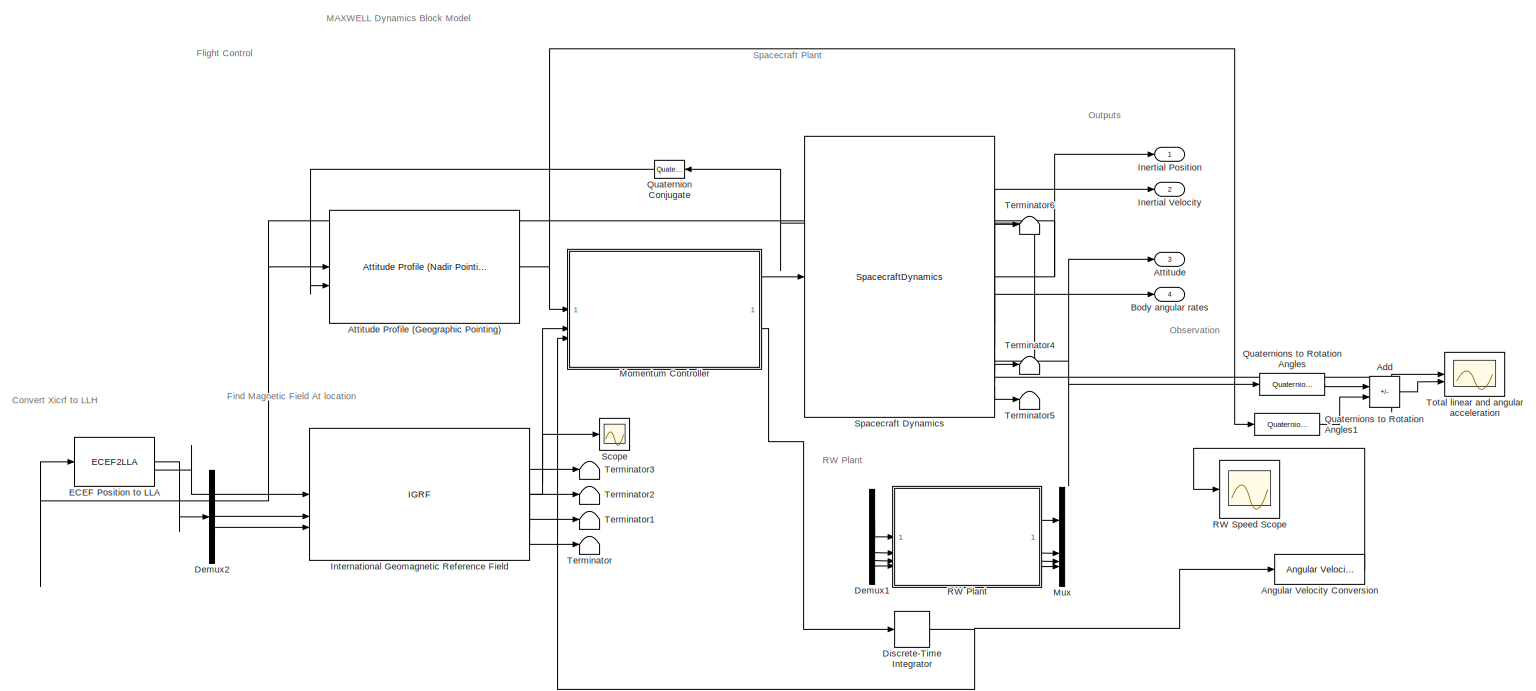
[diagram: root canvas - part 1/2, full width, middle band]
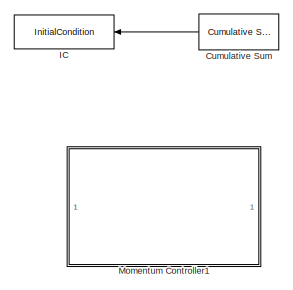
[diagram: root canvas - part 2/2, bottom center region]
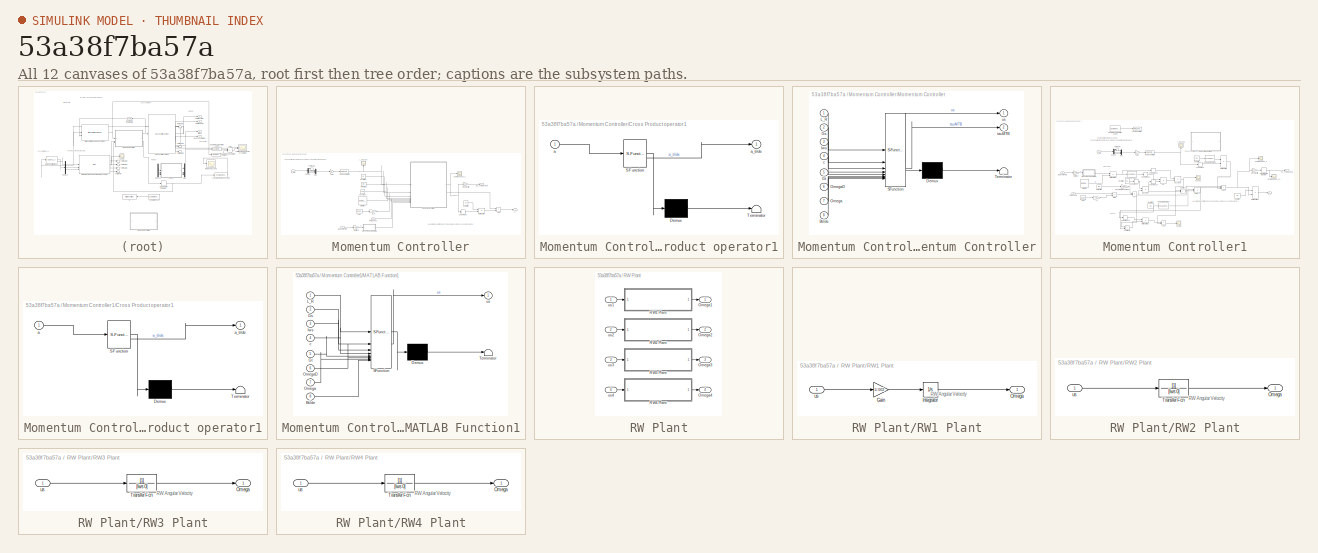
[diagram: thumbnail index - all 12 canvases of the model, root first then tree order]
MODEL slx_53a38f7ba57a
KIND model
CONFIG AbsTol = 1e-7
CONFIG EnableMultiTasking = off
CONFIG FixedStep = 5
CONFIG MaxStep = 10
CONFIG MinStep = auto
CONFIG RelTol = 1e-7
CONFIG SampleTimeConstraint = Unconstrained
CONFIG SolverName = VariableStepAuto
CONFIG StartTime = 0.0
CONFIG StopTime = 3600*4
WORKSPACE source: mxarray member
WORKSPACE Gs = [0 0.707106781187 0.707106781187 0 0.707106781187 -0.707106781187 0.707106781187 -0.707106781187 0 -0.707106781187 -0.707106781187 0]
WORKSPACE Iws = 0.002
WORKSPACE OmegaRW_0 = [5000 5000 5000 5000]
WORKSPACE Omega_bias = 26.1799
WORKSPACE RW_bias = 52.3598775598
BLOCK [Sum] Add
  IconShape = rectangular
  Inputs = +-
BLOCK [Reference] Angular Velocity Conversion  REF=aerolibconvert2/Angular Velocity
Conversion
  SourceBlock = aerolibconvert2/Angular Velocity\nConversion
  SourceType = Angular Velocity Conversion
BLOCK [Outport] Attitude
  Port = 3
BLOCK [Reference] Attitude Profile (Geographic Pointing)  REF=aerolibsatdyn/Attitude Profile
(Nadir Pointing)
  LibrarySourceBlock = aerolibsatdyn/Attitude Profile\n(Geographic Pointing)
  SourceBlock = aerolibsatdyn/Attitude Profile\n(Nadir Pointing)
  SourceType = Attitude Profile
BLOCK [Outport] Body angular rates
  Port = 4
BLOCK [Reference] Cumulative Sum  REF=dspmathops/Cumulative
Sum
  Commented = on
  NameLocation = top
  SourceBlock = dspmathops/Cumulative\nSum
  SourceType = Cumulative Sum
  UserDataPersistent = on
BLOCK [Demux] Demux1
  Commented = on
BLOCK [Demux] Demux2
  Outputs = 2
BLOCK [DiscreteIntegrator] Discrete-Time Integrator
  ICPrevOutput = DiscIntNeverNeededParam
  ICPrevScaledInput = DiscIntNeverNeededParam
  InitialCondition = [100;100;100;100]
  InitialConditionSetting = Auto
  IntegratorMethod = Accumulation: Forward Euler
  NameLocation = top
  SampleTime = -1
BLOCK [ECEF2LLA] ECEF Position to LLA
BLOCK [InitialCondition] IC
  Commented = on
  NameLocation = top
  Value = [100;100;100;100]
BLOCK [Outport] Inertial Position
BLOCK [Outport] Inertial Velocity
  Port = 2
BLOCK [IGRF] International Geomagnetic Reference Field
  AttributesFormatString = %<generation>
  day = 1
  month = January
  sv_out = off
  time_in = off
  year = 2020
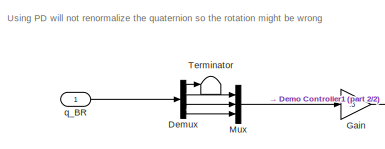
[diagram: Momentum Controller - part 1/2, top left region]
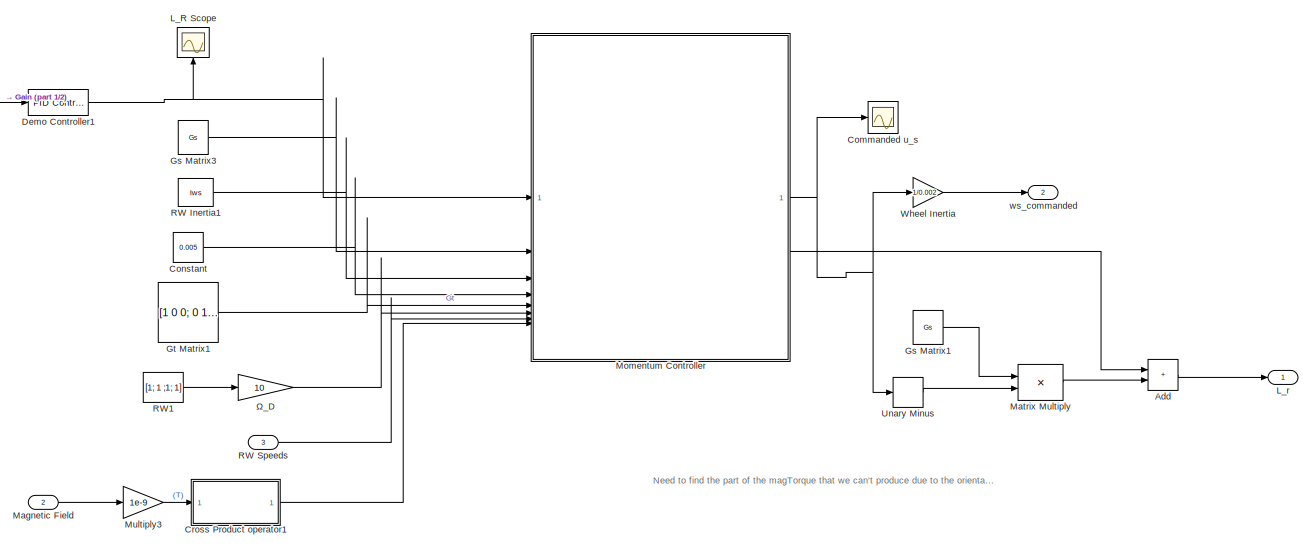
[diagram: Momentum Controller - part 2/2, most of the canvas]
BLOCK [SubSystem] Momentum Controller
  NameLocation = top
BLOCK [Sum] Momentum Controller/Add
  IconShape = rectangular
BLOCK [Scope] Momentum Controller/Commanded u_s 
  Floating = off
  NumInputPorts = 1
  ScopeSpecificationString = Simulink.scopes.TimeScopeBlockCfg('CurrentConfiguration', extmgr.ConfigurationSet(extmgr.Configuration('Core','General UI',true),extmgr.Configuration('Core','Source UI',true),extmgr.Configuration('Sources','WiredSimulink',true,'DataLoggingVariableName','ScopeData6'),extmgr.Configuration('Visuals','Time Domain',true,'SerializedDisplays',{struct('MinYLimReal','-0.01152','MaxYLimReal','0.00977','YLab...<+1564ch>
BLOCK [Constant] Momentum Controller/Constant
  Value = 0.005
BLOCK [SubSystem] Momentum Controller/Cross Product operator1
  ErrorFcn = Stateflow.Translate.translate
  PermitHierarchicalResolution = ExplicitOnly
  SFBlockType = MATLAB Function
  TreatAsAtomicUnit = on
BLOCK [Demux] Momentum Controller/Cross Product operator1/ Demux 
  Outputs = 1
BLOCK [S-Function] Momentum Controller/Cross Product operator1/ SFunction 
  EnableBusSupport = on
  FunctionName = sf_sfun
  PortCounts = [1 2]
  SFcnIsStateOwnerBlock = off
  SFunctionDeploymentMode = off
  Tag = Stateflow S-Function 2
BLOCK [Terminator] Momentum Controller/Cross Product operator1/ Terminator 
BLOCK [Inport] Momentum Controller/Cross Product operator1/a
BLOCK [Outport] Momentum Controller/Cross Product operator1/a_tilde
  VectorParamsAs1DForOutWhenUnconnected = off
BLOCK [Reference] Momentum Controller/Demo Controller1  REF=slpidlib/PID Controller
  SourceBlock = slpidlib/PID Controller
  SourceType = PID 1dof
BLOCK [Demux] Momentum Controller/Demux
BLOCK [Gain] Momentum Controller/Gain
  Gain = .5
BLOCK [Constant] Momentum Controller/Gs Matrix1
  Value = Gs
BLOCK [Constant] Momentum Controller/Gs Matrix3
  Value = Gs
BLOCK [Constant] Momentum Controller/Gt Matrix1
  Value = [1 0 0; 0 1 0; 0 0 1]
BLOCK [Scope] Momentum Controller/L_R Scope
  Floating = off
  NameLocation = top
  NumInputPorts = 1
  ScopeSpecificationString = Simulink.scopes.TimeScopeBlockCfg('CurrentConfiguration', extmgr.ConfigurationSet(extmgr.Configuration('Core','General UI',true),extmgr.Configuration('Core','Source UI',true),extmgr.Configuration('Sources','WiredSimulink',true,'DataLoggingVariableName','ScopeData4'),extmgr.Configuration('Visuals','Time Domain',true,'SerializedDisplays',{struct('MinYLimReal','-0.00058','MaxYLimReal','0.00117','YLab...<+1467ch>
BLOCK [Outport] Momentum Controller/L_r
BLOCK [Inport] Momentum Controller/Magnetic Field
  Port = 2
BLOCK [Product] Momentum Controller/Matrix Multiply
  Multiplication = Matrix(*)
BLOCK [SubSystem] Momentum Controller/Momentum Controller
  ErrorFcn = Stateflow.Translate.translate
  LibrarySourceBlock = simulink/User-Defined\nFunctions/MATLAB Function
  PermitHierarchicalResolution = ExplicitOnly
  SFBlockType = MATLAB Function
  TreatAsAtomicUnit = on
BLOCK [Demux] Momentum Controller/Momentum Controller/ Demux 
  Outputs = 1
BLOCK [S-Function] Momentum Controller/Momentum Controller/ SFunction 
  EnableBusSupport = on
  FunctionName = sf_sfun
  PortCounts = [8 3]
  SFcnIsStateOwnerBlock = off
  SFunctionDeploymentMode = off
  Tag = Stateflow S-Function 3
BLOCK [Terminator] Momentum Controller/Momentum Controller/ Terminator 
BLOCK [Inport] Momentum Controller/Momentum Controller/Btilde
  Port = 8
BLOCK [Inport] Momentum Controller/Momentum Controller/Gs
  Port = 2
BLOCK [Inport] Momentum Controller/Momentum Controller/Gt
  Port = 5
BLOCK [Inport] Momentum Controller/Momentum Controller/Iws
  Port = 3
BLOCK [Inport] Momentum Controller/Momentum Controller/L_R
BLOCK [Inport] Momentum Controller/Momentum Controller/Omega
  Port = 7
BLOCK [Inport] Momentum Controller/Momentum Controller/OmegaD
  Port = 6
BLOCK [Inport] Momentum Controller/Momentum Controller/c
  Port = 4
BLOCK [Outport] Momentum Controller/Momentum Controller/tauMTB
  Port = 2
BLOCK [Outport] Momentum Controller/Momentum Controller/us
BLOCK [Gain] Momentum Controller/Multiply3
  Gain = 1e-9
BLOCK [Mux] Momentum Controller/Mux
  DisplayOption = bar
  Inputs = 3
BLOCK [Constant] Momentum Controller/RW Inertia1
  Value = Iws
BLOCK [Inport] Momentum Controller/RW Speeds
  Port = 3
BLOCK [Constant] Momentum Controller/RW1
  Value = [1; 1 ;1; 1]
BLOCK [Terminator] Momentum Controller/Terminator
BLOCK [UnaryMinus] Momentum Controller/Unary Minus
BLOCK [Gain] Momentum Controller/Wheel Inertia
  Gain = 1/0.002
BLOCK [Inport] Momentum Controller/q_BR
BLOCK [Outport] Momentum Controller/ws_commanded
  Port = 2
BLOCK [Gain] Momentum Controller/Ω_D
  Gain = 10
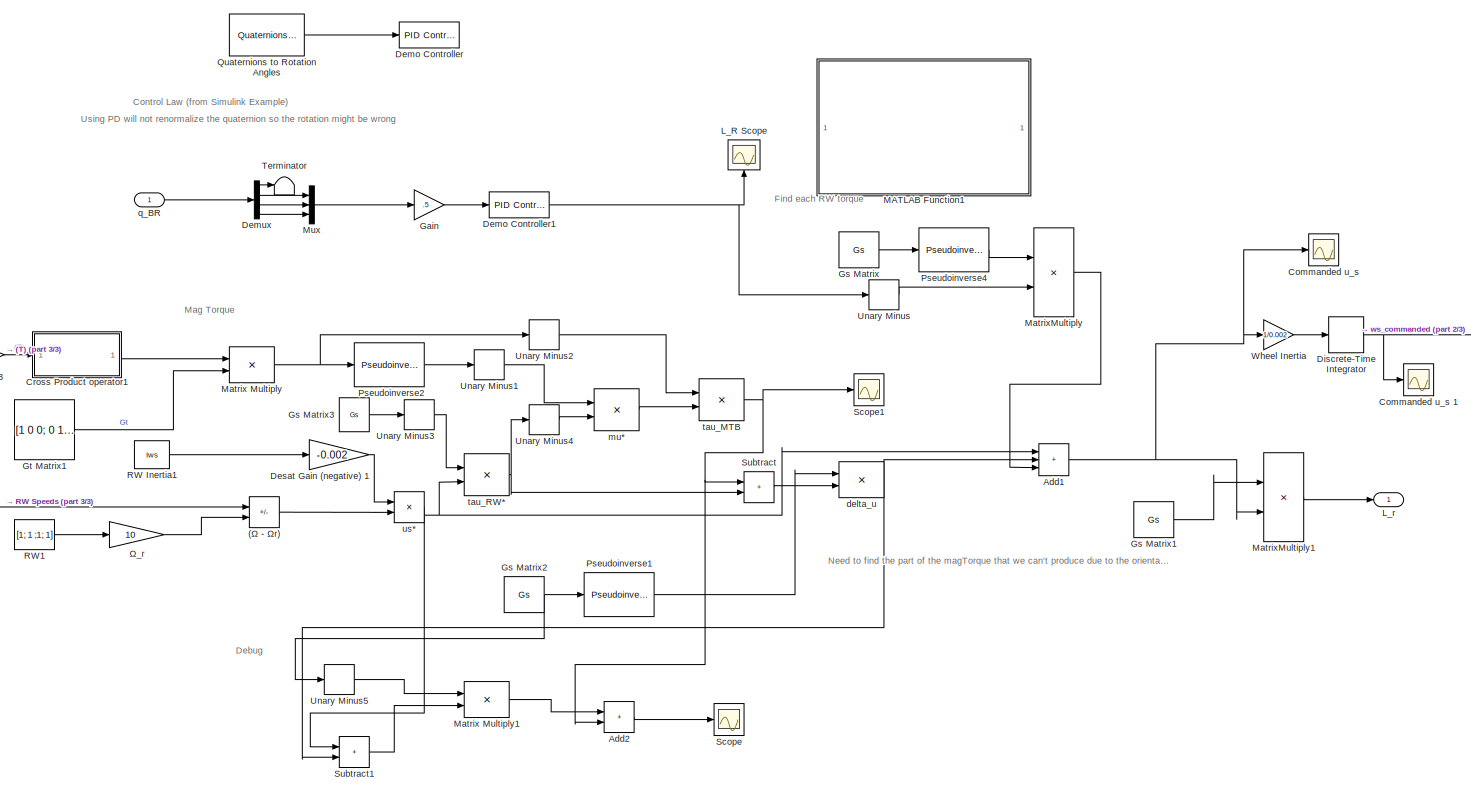
[diagram: Momentum Controller1 - part 1/3, most of the canvas]
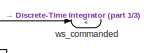
[diagram: Momentum Controller1 - part 2/3, middle right region]
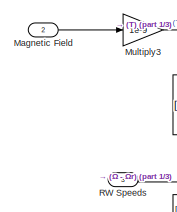
[diagram: Momentum Controller1 - part 3/3, middle left region]
BLOCK [SubSystem] Momentum Controller1
  Commented = on
  NameLocation = top
BLOCK [Sum] Momentum Controller1/(Ω - Ωr)
  IconShape = rectangular
  Inputs = +-
  NameLocation = top
BLOCK [Sum] Momentum Controller1/Add1
  IconShape = rectangular
  Inputs = +++
BLOCK [Sum] Momentum Controller1/Add2
  IconShape = rectangular
BLOCK [Scope] Momentum Controller1/Commanded u_s 
  Floating = off
  NumInputPorts = 1
  ScopeSpecificationString = Simulink.scopes.TimeScopeBlockCfg('CurrentConfiguration', extmgr.ConfigurationSet(extmgr.Configuration('Core','General UI',true),extmgr.Configuration('Core','Source UI',true),extmgr.Configuration('Sources','WiredSimulink',true,'DataLoggingVariableName','ScopeData6'),extmgr.Configuration('Visuals','Time Domain',true,'SerializedDisplays',{struct('MinYLimReal','-0.00163','MaxYLimReal','0.00163','YLab...<+1467ch>
BLOCK [Scope] Momentum Controller1/Commanded u_s 1
  Floating = off
  NumInputPorts = 1
  ScopeSpecificationString = Simulink.scopes.TimeScopeBlockCfg('CurrentConfiguration', extmgr.ConfigurationSet(extmgr.Configuration('Core','General UI',true),extmgr.Configuration('Core','Source UI',true),extmgr.Configuration('Sources','WiredSimulink',true,'DataLoggingVariableName','ScopeData1'),extmgr.Configuration('Visuals','Time Domain',true,'SerializedDisplays',{struct('MinYLimReal','-27.15049','MaxYLimReal','22.77825','YL...<+1551ch>
BLOCK [SubSystem] Momentum Controller1/Cross Product operator1
  ErrorFcn = Stateflow.Translate.translate
  PermitHierarchicalResolution = ExplicitOnly
  SFBlockType = MATLAB Function
  TreatAsAtomicUnit = on
BLOCK [Demux] Momentum Controller1/Cross Product operator1/ Demux 
  Outputs = 1
BLOCK [S-Function] Momentum Controller1/Cross Product operator1/ SFunction 
  EnableBusSupport = on
  FunctionName = sf_sfun
  PortCounts = [1 2]
  SFcnIsStateOwnerBlock = off
  SFunctionDeploymentMode = off
  Tag = Stateflow S-Function 4
BLOCK [Terminator] Momentum Controller1/Cross Product operator1/ Terminator 
BLOCK [Inport] Momentum Controller1/Cross Product operator1/a
BLOCK [Outport] Momentum Controller1/Cross Product operator1/a_tilde
  VectorParamsAs1DForOutWhenUnconnected = off
BLOCK [Reference] Momentum Controller1/Demo Controller  REF=slpidlib/PID Controller
  Commented = on
  SourceBlock = slpidlib/PID Controller
  SourceType = PID 1dof
BLOCK [Reference] Momentum Controller1/Demo Controller1  REF=slpidlib/PID Controller
  SourceBlock = slpidlib/PID Controller
  SourceType = PID 1dof
BLOCK [Demux] Momentum Controller1/Demux
BLOCK [Gain] Momentum Controller1/Desat Gain (negative) 1
  Gain = -0.002
BLOCK [DiscreteIntegrator] Momentum Controller1/Discrete-Time Integrator
  ICPrevOutput = DiscIntNeverNeededParam
  ICPrevScaledInput = DiscIntNeverNeededParam
  InitialConditionSetting = Auto
  SampleTime = -1
BLOCK [Gain] Momentum Controller1/Gain
  Gain = .5
BLOCK [Constant] Momentum Controller1/Gs Matrix
  NameLocation = left
  Value = Gs
BLOCK [Constant] Momentum Controller1/Gs Matrix1
  NameLocation = left
  Value = Gs
BLOCK [Constant] Momentum Controller1/Gs Matrix2
  NameLocation = left
  Value = Gs
BLOCK [Constant] Momentum Controller1/Gs Matrix3
  Value = Gs
BLOCK [Constant] Momentum Controller1/Gt Matrix1
  Value = [1 0 0; 0 1 0; 0 0 1]
BLOCK [Scope] Momentum Controller1/L_R Scope
  Floating = off
  NameLocation = top
  NumInputPorts = 1
  ScopeSpecificationString = Simulink.scopes.TimeScopeBlockCfg('CurrentConfiguration', extmgr.ConfigurationSet(extmgr.Configuration('Core','General UI',true),extmgr.Configuration('Core','Source UI',true),extmgr.Configuration('Sources','WiredSimulink',true,'DataLoggingVariableName','ScopeData4'),extmgr.Configuration('Visuals','Time Domain',true,'SerializedDisplays',{struct('MinYLimReal','-0.00058','MaxYLimReal','0.00117','YLab...<+1467ch>
BLOCK [Outport] Momentum Controller1/L_r
BLOCK [SubSystem] Momentum Controller1/MATLAB Function1
  ErrorFcn = Stateflow.Translate.translate
  LibrarySourceBlock = simulink/User-Defined\nFunctions/MATLAB Function
  PermitHierarchicalResolution = ExplicitOnly
  SFBlockType = MATLAB Function
  TreatAsAtomicUnit = on
BLOCK [Demux] Momentum Controller1/MATLAB Function1/ Demux 
  Outputs = 1
BLOCK [S-Function] Momentum Controller1/MATLAB Function1/ SFunction 
  EnableBusSupport = on
  FunctionName = sf_sfun
  PortCounts = [8 2]
  SFcnIsStateOwnerBlock = off
  SFunctionDeploymentMode = off
  Tag = Stateflow S-Function 5
BLOCK [Terminator] Momentum Controller1/MATLAB Function1/ Terminator 
BLOCK [Inport] Momentum Controller1/MATLAB Function1/Btilde
  Port = 8
BLOCK [Inport] Momentum Controller1/MATLAB Function1/Gs
  Port = 2
BLOCK [Inport] Momentum Controller1/MATLAB Function1/Gt
  Port = 5
BLOCK [Inport] Momentum Controller1/MATLAB Function1/Iws
  Port = 3
BLOCK [Inport] Momentum Controller1/MATLAB Function1/L_R
BLOCK [Inport] Momentum Controller1/MATLAB Function1/Omega
  Port = 7
BLOCK [Inport] Momentum Controller1/MATLAB Function1/OmegaD
  Port = 6
BLOCK [Inport] Momentum Controller1/MATLAB Function1/c
  Port = 4
BLOCK [Outport] Momentum Controller1/MATLAB Function1/us
BLOCK [Inport] Momentum Controller1/Magnetic Field
  Port = 2
BLOCK [Product] Momentum Controller1/Matrix Multiply
  Multiplication = Matrix(*)
BLOCK [Product] Momentum Controller1/Matrix Multiply1
  Multiplication = Matrix(*)
BLOCK [Product] Momentum Controller1/MatrixMultiply
  Multiplication = Matrix(*)
BLOCK [Product] Momentum Controller1/MatrixMultiply1
  Multiplication = Matrix(*)
BLOCK [Gain] Momentum Controller1/Multiply3
  Gain = 1e-9
BLOCK [Mux] Momentum Controller1/Mux
  DisplayOption = bar
  Inputs = 3
BLOCK [Reference] Momentum Controller1/Pseudoinverse1  REF=dspinverses/Pseudoinverse
  SourceBlock = dspinverses/Pseudoinverse
  SourceType = Pseudoinverse
BLOCK [Reference] Momentum Controller1/Pseudoinverse2  REF=dspinverses/Pseudoinverse
  SourceBlock = dspinverses/Pseudoinverse
  SourceType = Pseudoinverse
BLOCK [Reference] Momentum Controller1/Pseudoinverse4  REF=dspinverses/Pseudoinverse
  SourceBlock = dspinverses/Pseudoinverse
  SourceType = Pseudoinverse
BLOCK [Reference] Momentum Controller1/Quaternions to Rotation Angles  REF=sharedtransform/Quaternions to Rotation Angles
  AttributesFormatString = Rotation Order: %<rotationOrder>
  Commented = on
  SourceBlock = sharedtransform/Quaternions to Rotation Angles
  SourceType = Quat2Ang
BLOCK [Constant] Momentum Controller1/RW Inertia1
  Value = Iws
BLOCK [Inport] Momentum Controller1/RW Speeds
  Port = 3
BLOCK [Constant] Momentum Controller1/RW1
  Value = [1; 1 ;1; 1]
BLOCK [Scope] Momentum Controller1/Scope
  Floating = off
  NumInputPorts = 1
  ScopeSpecificationString = Simulink.scopes.TimeScopeBlockCfg('CurrentConfiguration', extmgr.ConfigurationSet(extmgr.Configuration('Core','General UI',true),extmgr.Configuration('Core','Source UI',true),extmgr.Configuration('Sources','WiredSimulink',true,'DataLoggingVariableName','ScopeData2'),extmgr.Configuration('Visuals','Time Domain',true,'SerializedDisplays',{struct('MinYLimReal','-1.00000','MaxYLimReal','1.00000','YLab...<+1457ch>
BLOCK [Scope] Momentum Controller1/Scope1
  Floating = off
  NumInputPorts = 1
  ScopeSpecificationString = Simulink.scopes.TimeScopeBlockCfg('CurrentConfiguration', extmgr.ConfigurationSet(extmgr.Configuration('Core','General UI',true),extmgr.Configuration('Core','Source UI',true),extmgr.Configuration('Sources','WiredSimulink',true,'DataLoggingVariableName','ScopeData3'),extmgr.Configuration('Visuals','Time Domain',true,'SerializedDisplays',{struct('MinYLimReal','-0.00022','MaxYLimReal','0.00021','YLab...<+1392ch>
BLOCK [Sum] Momentum Controller1/Subtract
  IconShape = rectangular
BLOCK [Sum] Momentum Controller1/Subtract1
  IconShape = rectangular
BLOCK [Terminator] Momentum Controller1/Terminator
BLOCK [UnaryMinus] Momentum Controller1/Unary Minus
BLOCK [UnaryMinus] Momentum Controller1/Unary Minus1
BLOCK [UnaryMinus] Momentum Controller1/Unary Minus2
BLOCK [UnaryMinus] Momentum Controller1/Unary Minus3
BLOCK [UnaryMinus] Momentum Controller1/Unary Minus4
BLOCK [UnaryMinus] Momentum Controller1/Unary Minus5
BLOCK [Gain] Momentum Controller1/Wheel Inertia
  Gain = 1/0.002
BLOCK [Product] Momentum Controller1/delta_u
  Multiplication = Matrix(*)
BLOCK [Product] Momentum Controller1/mu*
  Multiplication = Matrix(*)
BLOCK [Inport] Momentum Controller1/q_BR
BLOCK [Product] Momentum Controller1/tau_MTB
  Multiplication = Matrix(*)
BLOCK [Product] Momentum Controller1/tau_RW*
  Multiplication = Matrix(*)
BLOCK [Product] Momentum Controller1/us*
BLOCK [Outport] Momentum Controller1/ws_commanded
  Port = 2
BLOCK [Gain] Momentum Controller1/Ω_r
  Gain = 10
BLOCK [Mux] Mux
  Commented = on
  DisplayOption = bar
BLOCK [Reference] Quaternion Conjugate  REF=aerolibutil/Quaternion
Conjugate
  SourceBlock = aerolibutil/Quaternion\nConjugate
  SourceType = Quaternion Conjugate
BLOCK [Reference] Quaternions to Rotation Angles  REF=sharedtransform/Quaternions to Rotation Angles
  AttributesFormatString = Rotation Order: %<rotationOrder>
  SourceBlock = sharedtransform/Quaternions to Rotation Angles
  SourceType = Quat2Ang
BLOCK [Reference] Quaternions to Rotation Angles1  REF=sharedtransform/Quaternions to Rotation Angles
  AttributesFormatString = Rotation Order: %<rotationOrder>
  SourceBlock = sharedtransform/Quaternions to Rotation Angles
  SourceType = Quat2Ang
BLOCK [SubSystem] RW Plant
  Commented = on
BLOCK [Outport] RW Plant/Omega1
BLOCK [Outport] RW Plant/Omega2
  Port = 2
BLOCK [Outport] RW Plant/Omega3
  Port = 3
BLOCK [Outport] RW Plant/Omega4
  Port = 4
BLOCK [SubSystem] RW Plant/RW1 Plant
BLOCK [Gain] RW Plant/RW1 Plant/Gain
  Gain = 1/.002
BLOCK [Integrator] RW Plant/RW1 Plant/Integrator
BLOCK [Outport] RW Plant/RW1 Plant/Omega
BLOCK [Inport] RW Plant/RW1 Plant/us
BLOCK [SubSystem] RW Plant/RW2 Plant
BLOCK [Outport] RW Plant/RW2 Plant/Omega
BLOCK [TransferFcn] RW Plant/RW2 Plant/Transfer Fcn
  Denominator = [Iws 0]
BLOCK [Inport] RW Plant/RW2 Plant/us
BLOCK [SubSystem] RW Plant/RW3 Plant
BLOCK [Outport] RW Plant/RW3 Plant/Omega
BLOCK [TransferFcn] RW Plant/RW3 Plant/Transfer Fcn
  Denominator = [Iws 0]
BLOCK [Inport] RW Plant/RW3 Plant/us
BLOCK [SubSystem] RW Plant/RW4 Plant
BLOCK [Outport] RW Plant/RW4 Plant/Omega
BLOCK [TransferFcn] RW Plant/RW4 Plant/Transfer Fcn
  Denominator = [Iws 0]
BLOCK [Inport] RW Plant/RW4 Plant/us
BLOCK [Inport] RW Plant/us1
BLOCK [Inport] RW Plant/us2
  Port = 2
BLOCK [Inport] RW Plant/us3
  Port = 3
BLOCK [Inport] RW Plant/us4
  Port = 4
BLOCK [Scope] RW Speed Scope
  Floating = off
  NumInputPorts = 1
  ScopeSpecificationString = Simulink.scopes.TimeScopeBlockCfg('CurrentConfiguration', extmgr.ConfigurationSet(extmgr.Configuration('Core','General UI',true),extmgr.Configuration('Core','Source UI',true),extmgr.Configuration('Sources','WiredSimulink',true,'DataLoggingVariableName','ScopeData1'),extmgr.Configuration('Visuals','Time Domain',true,'TimeAxisLabels','All','SerializedDisplays',{struct('MinYLimReal','-873.02881','Max...<+1808ch>
BLOCK [Scope] Scope
  Floating = off
  NumInputPorts = 1
  ScopeSpecificationString = Simulink.scopes.TimeScopeBlockCfg('CurrentConfiguration', extmgr.ConfigurationSet(extmgr.Configuration('Core','General UI',true),extmgr.Configuration('Core','Source UI',true),extmgr.Configuration('Sources','WiredSimulink',true,'DataLoggingVariableName','ScopeData1'),extmgr.Configuration('Visuals','Time Domain',true,'SerializedDisplays',{struct('MinYLimReal','-26941.30338','MaxYLimReal','40439.8949...<+1575ch>
BLOCK [SpacecraftDynamics] Spacecraft Dynamics
  argPeriapsis = 0
  attitude = [0.0050 -0.5025 0.5025 -0.7035]
  attitudeRate = [5 8 8]
  eccentricity = 0
  forcesIn = off
  inclination = 20
  inertia = diag([10.5 8 6.75])
  mass = 6
  outputAccel = on
  outputAngAccel = on
  outputTransform = on
  raan = 60
  semiMajorAxis = 6778140
  startDate = 2459216
  trueAnomaly = 0
BLOCK [Terminator] Terminator
BLOCK [Terminator] Terminator1
BLOCK [Terminator] Terminator2
BLOCK [Terminator] Terminator3
BLOCK [Terminator] Terminator4
BLOCK [Terminator] Terminator5
BLOCK [Terminator] Terminator6
BLOCK [Scope] Total linear and angular acceleration
  Floating = off
  NumInputPorts = 2
  ScopeSpecificationString = Simulink.scopes.TimeScopeBlockCfg('CurrentConfiguration', extmgr.ConfigurationSet(extmgr.Configuration('Core','General UI',true),extmgr.Configuration('Core','Source UI',true),extmgr.Configuration('Sources','WiredSimulink',true),extmgr.Configuration('Visuals','Time Domain',true,'SerializedDisplays',{struct('MinYLimReal','-0.39001','MaxYLimReal','0.3677','YLabelReal','','MinYLimMag','0.00000','MaxYL...<+2338ch>
ANNOTATION (root): Spacecraft Plant
ANNOTATION (root): MAXWELL Dynamics Block Model
ANNOTATION (root): Convert Xicrf to LLH
ANNOTATION (root): Find Magnetic Field At location
ANNOTATION (root): Flight Control
ANNOTATION (root): Observation
ANNOTATION (root): Outputs
ANNOTATION (root): RW Plant
ANNOTATION Momentum Controller: Need to find the part of the magTorque that we can't produce due to the orientation of the magField and subtract that from the desat torque of the reaction wheels (delta_u in Schaub's paper) to prevent the RW from spinning up instead of down. Also, need to convert the required torque into RW torque before subtracting the torque that we can and cannot produce with the torque bars (also convert that...<+24ch>
ANNOTATION Momentum Controller: Using PD will not renormalize the quaternion so the rotation might be wrong
ANNOTATION Momentum Controller1: Control Law (from Simulink Example)
ANNOTATION Momentum Controller1: Debug
ANNOTATION Momentum Controller1: Find each RW torque
ANNOTATION Momentum Controller1: Mag Torque
ANNOTATION Momentum Controller1: Need to find the part of the magTorque that we can't produce due to the orientation of the magField and subtract that from the desat torque of the reaction wheels (delta_u in Schaub's paper) to prevent the RW from spinning up instead of down. Also, need to convert the required torque into RW torque before subtracting the torque that we can and cannot produce with the torque bars (also convert that...<+24ch>
ANNOTATION Momentum Controller1: Using PD will not renormalize the quaternion so the rotation might be wrong
ANNOTATION RW Plant/RW1 Plant: RW Angular Velocity
ANNOTATION RW Plant/RW2 Plant: RW Angular Velocity
ANNOTATION RW Plant/RW3 Plant: RW Angular Velocity
ANNOTATION RW Plant/RW4 Plant: RW Angular Velocity
LINE Add:1 -> Total linear and angular acceleration:2
LINE Angular Velocity Conversion:1 -> RW Speed Scope:1
NET Attitude Profile (Geographic Pointing):1 -> Momentum Controller:1, Quaternions to Rotation Angles1:1
LINE Cumulative Sum:1 -> IC:1
LINE Demux1:1 -> RW Plant:1
LINE Demux1:2 -> RW Plant:2
LINE Demux1:3 -> RW Plant:3
LINE Demux1:4 -> RW Plant:4
LINE Demux2:1 -> International Geomagnetic Reference Field:2
LINE Demux2:2 -> International Geomagnetic Reference Field:3
NET Discrete-Time Integrator:1 -> Angular Velocity Conversion:1, Momentum Controller:3
LINE ECEF Position to LLA:1 -> Demux2:1
LINE ECEF Position to LLA:2 -> International Geomagnetic Reference Field:1
NET International Geomagnetic Reference Field:1 -> Momentum Controller:2, Scope:1
LINE International Geomagnetic Reference Field:2 -> Terminator3:1
LINE International Geomagnetic Reference Field:3 -> Terminator2:1
LINE International Geomagnetic Reference Field:4 -> Terminator1:1
LINE International Geomagnetic Reference Field:5 -> Terminator:1
LINE Momentum Controller/Add:1 -> Momentum Controller/L_r:1
LINE Momentum Controller/Constant:1 -> Momentum Controller/Momentum Controller:4
LINE Momentum Controller/Cross Product operator1:1 -> Momentum Controller/Momentum Controller:8
NET Momentum Controller/Demo Controller1:1 -> Momentum Controller/L_R Scope:1, Momentum Controller/Momentum Controller:1
LINE Momentum Controller/Demux:1 -> Momentum Controller/Terminator:1
LINE Momentum Controller/Demux:2 -> Momentum Controller/Mux:1
LINE Momentum Controller/Demux:3 -> Momentum Controller/Mux:2
LINE Momentum Controller/Demux:4 -> Momentum Controller/Mux:3
LINE Momentum Controller/Gain:1 -> Momentum Controller/Demo Controller1:1
LINE Momentum Controller/Gs Matrix1:1 -> Momentum Controller/Matrix Multiply:1
LINE Momentum Controller/Gs Matrix3:1 -> Momentum Controller/Momentum Controller:2
LINE Momentum Controller/Gt Matrix1:1 -> Momentum Controller/Momentum Controller:5
LINE Momentum Controller/Magnetic Field:1 -> Momentum Controller/Multiply3:1
LINE Momentum Controller/Matrix Multiply:1 -> Momentum Controller/Add:2
NET Momentum Controller/Momentum Controller:1 -> Momentum Controller/Commanded u_s :1, Momentum Controller/Unary Minus:1, Momentum Controller/Wheel Inertia:1
LINE Momentum Controller/Momentum Controller:2 -> Momentum Controller/Add:1
LINE Momentum Controller/Multiply3:1 -> Momentum Controller/Cross Product operator1:1
LINE Momentum Controller/Mux:1 -> Momentum Controller/Gain:1
LINE Momentum Controller/RW Inertia1:1 -> Momentum Controller/Momentum Controller:3
LINE Momentum Controller/RW Speeds:1 -> Momentum Controller/Momentum Controller:7
LINE Momentum Controller/RW1:1 -> Momentum Controller/Ω_D:1
LINE Momentum Controller/Unary Minus:1 -> Momentum Controller/Matrix Multiply:2
LINE Momentum Controller/Wheel Inertia:1 -> Momentum Controller/ws_commanded:1
LINE Momentum Controller/q_BR:1 -> Momentum Controller/Demux:1
LINE Momentum Controller/Ω_D:1 -> Momentum Controller/Momentum Controller:6
LINE Momentum Controller1/(Ω - Ωr):1 -> Momentum Controller1/us*:2
NET Momentum Controller1/Add1:1 -> Momentum Controller1/Commanded u_s :1, Momentum Controller1/MatrixMultiply1:2, Momentum Controller1/Wheel Inertia:1
LINE Momentum Controller1/Add2:1 -> Momentum Controller1/Scope:1
LINE Momentum Controller1/Cross Product operator1:1 -> Momentum Controller1/Matrix Multiply:1
NET Momentum Controller1/Demo Controller1:1 -> Momentum Controller1/L_R Scope:1, Momentum Controller1/Unary Minus:1
LINE Momentum Controller1/Demux:1 -> Momentum Controller1/Terminator:1
LINE Momentum Controller1/Demux:2 -> Momentum Controller1/Mux:1
LINE Momentum Controller1/Demux:3 -> Momentum Controller1/Mux:2
LINE Momentum Controller1/Demux:4 -> Momentum Controller1/Mux:3
LINE Momentum Controller1/Desat Gain (negative) 1:1 -> Momentum Controller1/us*:1
NET Momentum Controller1/Discrete-Time Integrator:1 -> Momentum Controller1/Commanded u_s 1:1, Momentum Controller1/ws_commanded:1
LINE Momentum Controller1/Gain:1 -> Momentum Controller1/Demo Controller1:1
LINE Momentum Controller1/Gs Matrix1:1 -> Momentum Controller1/MatrixMultiply1:1
NET Momentum Controller1/Gs Matrix2:1 -> Momentum Controller1/Pseudoinverse1:1, Momentum Controller1/Unary Minus5:1
LINE Momentum Controller1/Gs Matrix3:1 -> Momentum Controller1/Unary Minus3:1
LINE Momentum Controller1/Gs Matrix:1 -> Momentum Controller1/Pseudoinverse4:1
LINE Momentum Controller1/Gt Matrix1:1 -> Momentum Controller1/Matrix Multiply:2
LINE Momentum Controller1/Magnetic Field:1 -> Momentum Controller1/Multiply3:1
LINE Momentum Controller1/Matrix Multiply1:1 -> Momentum Controller1/Add2:1
NET Momentum Controller1/Matrix Multiply:1 -> Momentum Controller1/Pseudoinverse2:1, Momentum Controller1/Unary Minus2:1
LINE Momentum Controller1/MatrixMultiply1:1 -> Momentum Controller1/L_r:1
LINE Momentum Controller1/MatrixMultiply:1 -> Momentum Controller1/Add1:3
LINE Momentum Controller1/Multiply3:1 -> Momentum Controller1/Cross Product operator1:1
LINE Momentum Controller1/Mux:1 -> Momentum Controller1/Gain:1
LINE Momentum Controller1/Pseudoinverse1:1 -> Momentum Controller1/delta_u:1
LINE Momentum Controller1/Pseudoinverse2:1 -> Momentum Controller1/Unary Minus1:1
LINE Momentum Controller1/Pseudoinverse4:1 -> Momentum Controller1/MatrixMultiply:1
LINE Momentum Controller1/Quaternions to Rotation Angles:1 -> Momentum Controller1/Demo Controller:1
LINE Momentum Controller1/RW Inertia1:1 -> Momentum Controller1/Desat Gain (negative) 1:1
LINE Momentum Controller1/RW Speeds:1 -> Momentum Controller1/(Ω - Ωr):1
LINE Momentum Controller1/RW1:1 -> Momentum Controller1/Ω_r:1
LINE Momentum Controller1/Subtract1:1 -> Momentum Controller1/Matrix Multiply1:2
LINE Momentum Controller1/Subtract:1 -> Momentum Controller1/delta_u:2
LINE Momentum Controller1/Unary Minus1:1 -> Momentum Controller1/mu*:1
LINE Momentum Controller1/Unary Minus2:1 -> Momentum Controller1/tau_MTB:1
LINE Momentum Controller1/Unary Minus3:1 -> Momentum Controller1/tau_RW*:1
LINE Momentum Controller1/Unary Minus4:1 -> Momentum Controller1/mu*:2
LINE Momentum Controller1/Unary Minus5:1 -> Momentum Controller1/Matrix Multiply1:1
LINE Momentum Controller1/Unary Minus:1 -> Momentum Controller1/MatrixMultiply:2
LINE Momentum Controller1/Wheel Inertia:1 -> Momentum Controller1/Discrete-Time Integrator:1
NET Momentum Controller1/delta_u:1 -> Momentum Controller1/Add1:2, Momentum Controller1/Subtract1:2
LINE Momentum Controller1/mu*:1 -> Momentum Controller1/tau_MTB:2
LINE Momentum Controller1/q_BR:1 -> Momentum Controller1/Demux:1
NET Momentum Controller1/tau_MTB:1 -> Momentum Controller1/Add2:2, Momentum Controller1/Scope1:1, Momentum Controller1/Subtract:1
NET Momentum Controller1/tau_RW*:1 -> Momentum Controller1/Subtract:2, Momentum Controller1/Unary Minus4:1
NET Momentum Controller1/us*:1 -> Momentum Controller1/Add1:1, Momentum Controller1/Subtract1:1, Momentum Controller1/tau_RW*:2
LINE Momentum Controller1/Ω_r:1 -> Momentum Controller1/(Ω - Ωr):2
LINE Momentum Controller:1 -> Spacecraft Dynamics:1
LINE Momentum Controller:2 -> Discrete-Time Integrator:1
LINE Quaternion Conjugate:1 -> Attitude Profile (Geographic Pointing):2
LINE Quaternions to Rotation Angles1:1 -> Add:2
LINE Quaternions to Rotation Angles:1 -> Add:1
LINE RW Plant/RW1 Plant/Gain:1 -> RW Plant/RW1 Plant/Integrator:1
LINE RW Plant/RW1 Plant/Integrator:1 -> RW Plant/RW1 Plant/Omega:1
LINE RW Plant/RW1 Plant/us:1 -> RW Plant/RW1 Plant/Gain:1
LINE RW Plant/RW1 Plant:1 -> RW Plant/Omega1:1
LINE RW Plant/RW2 Plant/Transfer Fcn:1 -> RW Plant/RW2 Plant/Omega:1
LINE RW Plant/RW2 Plant/us:1 -> RW Plant/RW2 Plant/Transfer Fcn:1
LINE RW Plant/RW2 Plant:1 -> RW Plant/Omega2:1
LINE RW Plant/RW3 Plant/Transfer Fcn:1 -> RW Plant/RW3 Plant/Omega:1
LINE RW Plant/RW3 Plant/us:1 -> RW Plant/RW3 Plant/Transfer Fcn:1
LINE RW Plant/RW3 Plant:1 -> RW Plant/Omega3:1
LINE RW Plant/RW4 Plant/Transfer Fcn:1 -> RW Plant/RW4 Plant/Omega:1
LINE RW Plant/RW4 Plant/us:1 -> RW Plant/RW4 Plant/Transfer Fcn:1
LINE RW Plant/RW4 Plant:1 -> RW Plant/Omega4:1
LINE RW Plant/us1:1 -> RW Plant/RW1 Plant:1
LINE RW Plant/us2:1 -> RW Plant/RW2 Plant:1
LINE RW Plant/us3:1 -> RW Plant/RW3 Plant:1
LINE RW Plant/us4:1 -> RW Plant/RW4 Plant:1
LINE RW Plant:1 -> Mux:1
LINE RW Plant:2 -> Mux:2
LINE RW Plant:3 -> Mux:3
LINE RW Plant:4 -> Mux:4
NET Spacecraft Dynamics:1 -> Attitude Profile (Geographic Pointing):1, ECEF Position to LLA:1, Inertial Position:1
LINE Spacecraft Dynamics:2 -> Inertial Velocity:1
LINE Spacecraft Dynamics:3 -> Terminator6:1
NET Spacecraft Dynamics:4 -> Attitude:1, Quaternion Conjugate:1, Quaternions to Rotation Angles:1
LINE Spacecraft Dynamics:5 -> Body angular rates:1
LINE Spacecraft Dynamics:6 -> Total linear and angular acceleration:1
LINE Spacecraft Dynamics:7 -> Terminator4:1
LINE Spacecraft Dynamics:8 -> Terminator5:1
note: NET lines group one-source signal fan-out (src -> all destinations, sorted); 1:1 wires keep LINE
CHART Momentum Controller/Cross Product operator1 states=1 transitions=1
  STATE_LABEL 'eML_blk_kernel()'
  STATE_LABEL "SCRIPT:\nfunction a_tilde  = tilde(a)\n%tilde(a) Returns the tilde matrix of the vector 'a' (3 dim)\n\n% Throw error if vector has more than 3 elements\nif numel(a) > 3\n    error('Your vector is too long')\nend\n\n% Decompose vector into elements\na1 = a(1); a2 = a(2); a3 = a(3);\n\n% Construct tilde matrix\na_tilde = [ 0 -a3 a2; a3 0 -a1; -a2 a1 0];\nend"
CHART Momentum Controller/Momentum Controller states=1 transitions=1
  STATE_LABEL 'eML_blk_kernel()'
  STATE_LABEL 'SCRIPT:\nfunction [us,tauMTB] = WheelTorque_Command(L_R, Gs, Iws, c, Gt, OmegaD, Omega, Btilde )       %remove error? \n\n    % Find required RW torque to point\n    usReq = pinv(Gs) * (- L_R); % [Nm]\n\n    % Find despin torque\n    usStar = -c * Iws * (Omega - OmegaD); % [Nm] ---\n\n    % Find required magnetic dipole\n    muStar = -pinv(Btilde*Gt) * Gs * usStar;   %---\n\n    % Find resulitng magnetic torq...<+376ch>'
CHART Momentum Controller1/Cross Product operator1 states=1 transitions=1
  STATE_LABEL 'eML_blk_kernel()'
  STATE_LABEL "SCRIPT:\nfunction a_tilde  = tilde(a)\n%tilde(a) Returns the tilde matrix of the vector 'a' (3 dim)\n\n% Throw error if vector has more than 3 elements\nif numel(a) > 3\n    error('Your vector is too long')\nend\n\n% Decompose vector into elements\na1 = a(1); a2 = a(2); a3 = a(3);\n\n% Construct tilde matrix\na_tilde = [ 0 -a3 a2; a3 0 -a1; -a2 a1 0];\nend"
CHART Momentum Controller1/MATLAB Function1 states=1 transitions=1
  STATE_LABEL 'eML_blk_kernel()'
  STATE_LABEL 'SCRIPT:\nfunction us = fcn(L_R, Gs, Iws, c, Gt, OmegaD, Omega, Btilde )       %remove error? \n\n    % Find required RW torque to point\n    usReq = pinv(Gs) * (- L_R); % [Nm]\n\n    % Find despin torque\n    usStar = -c * Iws * (Omega - OmegaD); % [Nm] ---\n\n    % Find required magnetic dipole\n    muStar = -pinv(Btilde*Gt) * Gs * usStar;   %---\n\n    % Find resulitng magnetic torque\n    tauMTB = -Btilde *...<+332ch>'
CHART  states=0 transitions=0
CHART  states=0 transitions=0
CHART  states=0 transitions=0
CHART  states=0 transitions=0
